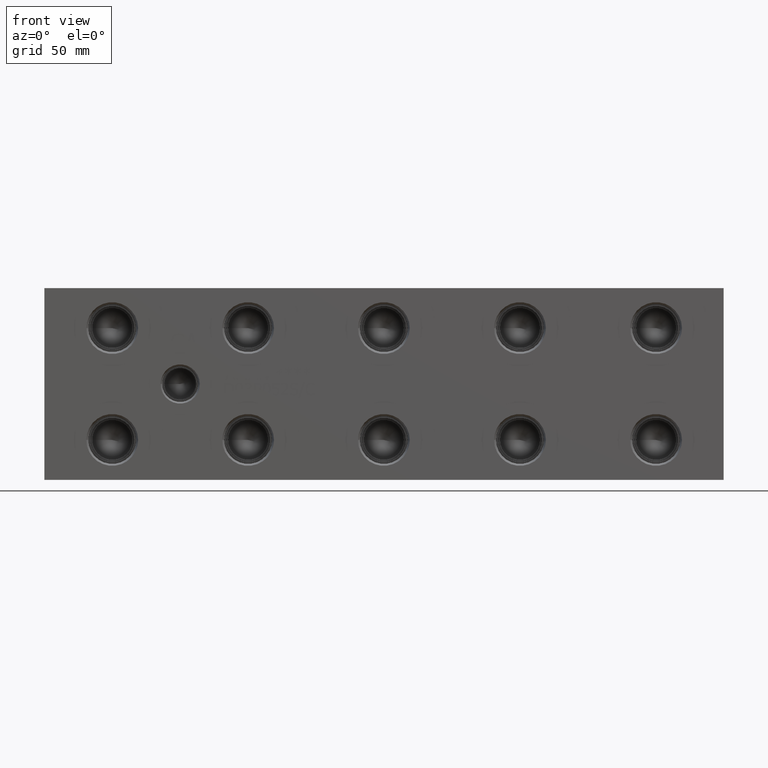
[diagram: clean part render]
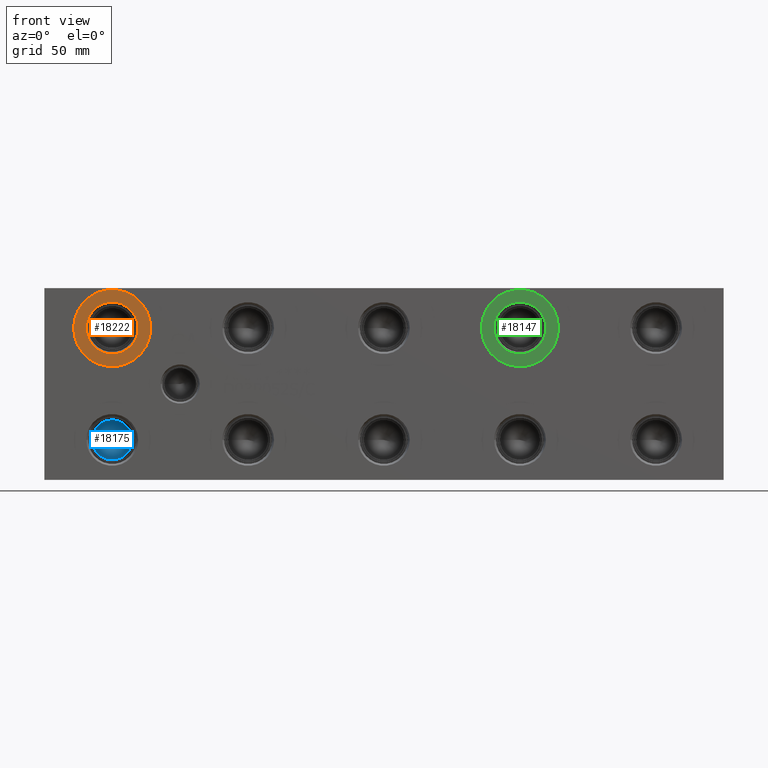
[diagram: same view with three faces highlighted in distinct colors, each labeled with its STEP entity id]
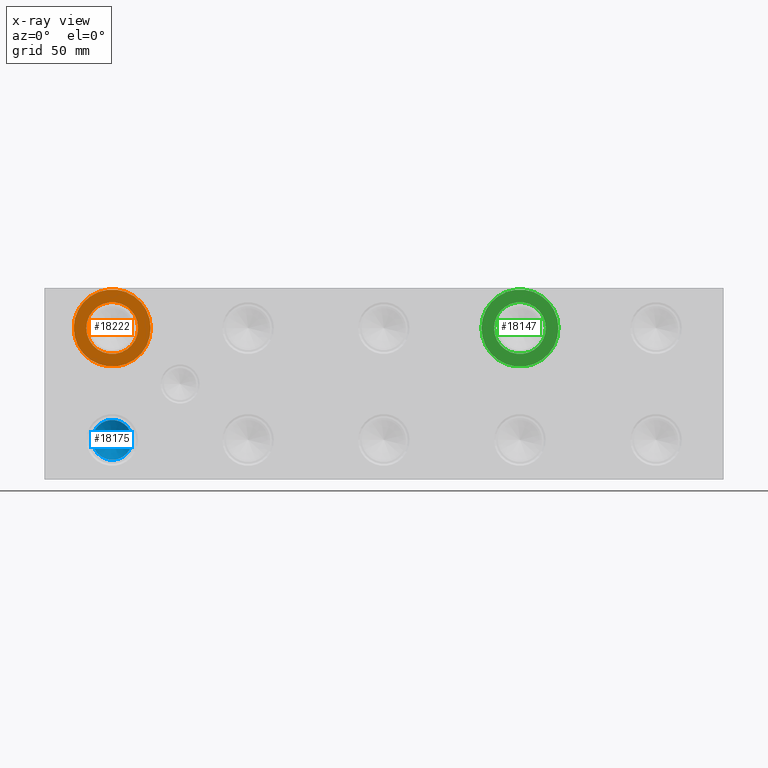
[diagram: x-ray of the same camera — body ghosted, the three highlighted faces saturated]
A machine part, front view with three faces highlighted in distinct colors.
The next image is the same camera in x-ray (body ghosted, the three faces saturated) — at least one of them is partly hidden behind the body in this view.
Their STEP definitions:

[orange] entity #18222 — the highlighted planar face has unit normal (0, 1, 0).
#600=CIRCLE('',#19288,15.3162);
#601=CIRCLE('',#19289,15.3162);
#602=CIRCLE('',#19291,10.2997);
#603=CIRCLE('',#19292,10.2997);
#978=FACE_BOUND('',#3593,.T.);
#2522=FACE_OUTER_BOUND('',#3592,.T.);
#3592=EDGE_LOOP('',(#15541,#15542));
#3593=EDGE_LOOP('',(#15543,#15544));
#8353=VERTEX_POINT('',#31226);
#8354=VERTEX_POINT('',#31228);
#8355=VERTEX_POINT('',#31232);
#8356=VERTEX_POINT('',#31233);
#10836=EDGE_CURVE('',#8353,#8354,#600,.T.);
#10837=EDGE_CURVE('',#8354,#8353,#601,.T.);
#10838=EDGE_CURVE('',#8355,#8356,#602,.T.);
#10839=EDGE_CURVE('',#8356,#8355,#603,.T.);
#15541=ORIENTED_EDGE('',*,*,#10837,.F.);
#15542=ORIENTED_EDGE('',*,*,#10836,.F.);
#15543=ORIENTED_EDGE('',*,*,#10838,.T.);
#15544=ORIENTED_EDGE('',*,*,#10839,.T.);
#16784=PLANE('',#19290);
#18222=ADVANCED_FACE('',(#2522,#978),#16784,.F.);
#19288=AXIS2_PLACEMENT_3D('',#31229,#22916,#22917);
#19289=AXIS2_PLACEMENT_3D('',#31230,#22918,#22919);
#19290=AXIS2_PLACEMENT_3D('',#31231,#22920,#22921);
#19291=AXIS2_PLACEMENT_3D('',#31234,#22922,#22923);
#19292=AXIS2_PLACEMENT_3D('',#31235,#22924,#22925);
#22916=DIRECTION('center_axis',(0.,1.,0.));
#22917=DIRECTION('ref_axis',(1.,0.,0.));
#22918=DIRECTION('center_axis',(0.,1.,0.));
#22919=DIRECTION('ref_axis',(1.,0.,0.));
#22920=DIRECTION('center_axis',(0.,1.,0.));
#22921=DIRECTION('ref_axis',(0.,0.,1.));
#22922=DIRECTION('center_axis',(0.,1.,0.));
#22923=DIRECTION('ref_axis',(1.,0.,0.));
#22924=DIRECTION('center_axis',(0.,1.,0.));
#22925=DIRECTION('ref_axis',(1.,0.,0.));
#31226=CARTESIAN_POINT('',(11.6586,0.7874,60.325));
#31228=CARTESIAN_POINT('',(42.291,0.7874,60.325));
#31229=CARTESIAN_POINT('Origin',(26.9748,0.7874,60.325));
#31230=CARTESIAN_POINT('Origin',(26.9748,0.7874,60.325));
#31231=CARTESIAN_POINT('Origin',(37.2745,0.7874,60.325));
#31232=CARTESIAN_POINT('',(37.2745,0.7874,60.325));
#31233=CARTESIAN_POINT('',(16.6751,0.787399999999999,60.325));
#31234=CARTESIAN_POINT('Origin',(26.9748,0.7874,60.325));
#31235=CARTESIAN_POINT('Origin',(26.9748,0.7874,60.325));

[blue] entity #18175 — the highlighted conical surface has half-angle 60 deg.
#64=CONICAL_SURFACE('',#19181,3.96875,1.0471975511966);
#540=CIRCLE('',#19182,7.9375);
#541=CIRCLE('',#19183,7.9375);
#2475=FACE_OUTER_BOUND('',#3535,.T.);
#3535=EDGE_LOOP('',(#15328,#15329,#15330,#15331));
#5183=LINE('',#31025,#6715);
#6715=VECTOR('',#22669,3.96875);
#8290=VERTEX_POINT('',#31021);
#8291=VERTEX_POINT('',#31022);
#8292=VERTEX_POINT('',#31024);
#10739=EDGE_CURVE('',#8290,#8291,#540,.T.);
#10740=EDGE_CURVE('',#8291,#8292,#5183,.T.);
#10741=EDGE_CURVE('',#8291,#8290,#541,.T.);
#15328=ORIENTED_EDGE('',*,*,#10739,.T.);
#15329=ORIENTED_EDGE('',*,*,#10740,.T.);
#15330=ORIENTED_EDGE('',*,*,#10740,.F.);
#15331=ORIENTED_EDGE('',*,*,#10741,.T.);
#18175=ADVANCED_FACE('',(#2475),#64,.F.);
#19181=AXIS2_PLACEMENT_3D('',#31020,#22665,#22666);
#19182=AXIS2_PLACEMENT_3D('',#31023,#22667,#22668);
#19183=AXIS2_PLACEMENT_3D('',#31026,#22670,#22671);
#22665=DIRECTION('center_axis',(0.,-1.,0.));
#22666=DIRECTION('ref_axis',(1.,0.,0.));
#22667=DIRECTION('center_axis',(0.,-1.,0.));
#22668=DIRECTION('ref_axis',(1.,0.,0.));
#22669=DIRECTION('',(0.866025403784439,0.5,1.06057523872491E-16));
#22670=DIRECTION('center_axis',(0.,-1.,0.));
#22671=DIRECTION('ref_axis',(1.,0.,0.));
#31020=CARTESIAN_POINT('Origin',(26.9748,25.5239588808463,15.875));
#31021=CARTESIAN_POINT('',(34.9123,23.2326,15.875));
#31022=CARTESIAN_POINT('',(19.0373,23.2326,15.875));
#31023=CARTESIAN_POINT('Origin',(26.9748,23.2326,15.875));
#31024=CARTESIAN_POINT('',(26.9748,27.8153177616927,15.875));
#31025=CARTESIAN_POINT('',(23.00605,25.5239588808463,15.875));
#31026=CARTESIAN_POINT('Origin',(26.9748,23.2326,15.875));

[green] entity #18147 — the highlighted planar face has unit normal (0, 1, 0).
#492=CIRCLE('',#19105,15.3162);
#493=CIRCLE('',#19106,15.3162);
#494=CIRCLE('',#19108,10.2997);
#495=CIRCLE('',#19109,10.2997);
#965=FACE_BOUND('',#3505,.T.);
#2447=FACE_OUTER_BOUND('',#3504,.T.);
#3504=EDGE_LOOP('',(#15190,#15191));
#3505=EDGE_LOOP('',(#15192,#15193));
#8235=VERTEX_POINT('',#30863);
#8236=VERTEX_POINT('',#30865);
#8237=VERTEX_POINT('',#30869);
#8238=VERTEX_POINT('',#30870);
#10666=EDGE_CURVE('',#8235,#8236,#492,.T.);
#10667=EDGE_CURVE('',#8236,#8235,#493,.T.);
#10668=EDGE_CURVE('',#8237,#8238,#494,.T.);
#10669=EDGE_CURVE('',#8238,#8237,#495,.T.);
#15190=ORIENTED_EDGE('',*,*,#10667,.F.);
#15191=ORIENTED_EDGE('',*,*,#10666,.F.);
#15192=ORIENTED_EDGE('',*,*,#10668,.T.);
#15193=ORIENTED_EDGE('',*,*,#10669,.T.);
#16771=PLANE('',#19107);
#18147=ADVANCED_FACE('',(#2447,#965),#16771,.F.);
#19105=AXIS2_PLACEMENT_3D('',#30866,#22488,#22489);
#19106=AXIS2_PLACEMENT_3D('',#30867,#22490,#22491);
#19107=AXIS2_PLACEMENT_3D('',#30868,#22492,#22493);
#19108=AXIS2_PLACEMENT_3D('',#30871,#22494,#22495);
#19109=AXIS2_PLACEMENT_3D('',#30872,#22496,#22497);
#22488=DIRECTION('center_axis',(0.,1.,0.));
#22489=DIRECTION('ref_axis',(1.,0.,0.));
#22490=DIRECTION('center_axis',(0.,1.,0.));
#22491=DIRECTION('ref_axis',(1.,0.,0.));
#22492=DIRECTION('center_axis',(0.,1.,0.));
#22493=DIRECTION('ref_axis',(0.,0.,1.));
#22494=DIRECTION('center_axis',(0.,1.,0.));
#22495=DIRECTION('ref_axis',(1.,0.,0.));
#22496=DIRECTION('center_axis',(0.,1.,0.));
#22497=DIRECTION('ref_axis',(1.,0.,0.));
#30863=CARTESIAN_POINT('',(173.7106,0.7874,60.325));
#30865=CARTESIAN_POINT('',(204.343,0.7874,60.325));
#30866=CARTESIAN_POINT('Origin',(189.0268,0.7874,60.325));
#30867=CARTESIAN_POINT('Origin',(189.0268,0.7874,60.325));
#30868=CARTESIAN_POINT('Origin',(199.3265,0.7874,60.325));
#30869=CARTESIAN_POINT('',(199.3265,0.7874,60.325));
#30870=CARTESIAN_POINT('',(178.7271,0.7874,60.325));
#30871=CARTESIAN_POINT('Origin',(189.0268,0.7874,60.325));
#30872=CARTESIAN_POINT('Origin',(189.0268,0.7874,60.325));